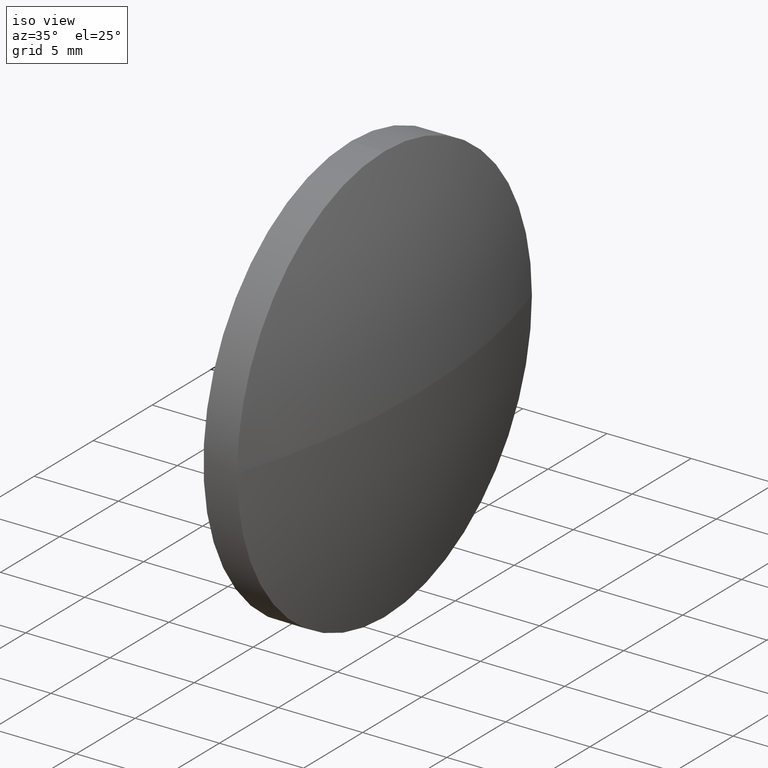
[diagram: clean part render]
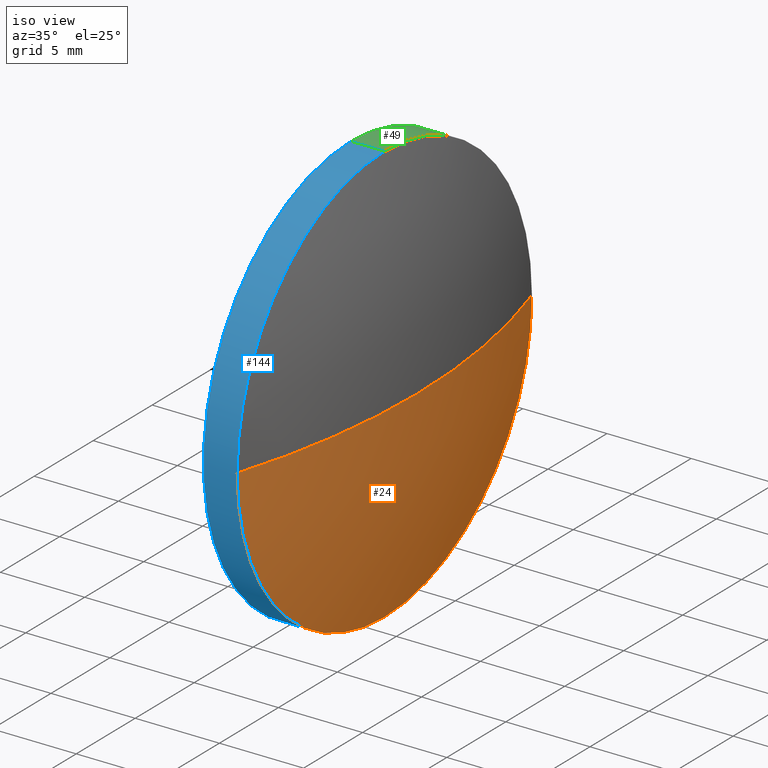
[diagram: same view with three faces highlighted in distinct colors, each labeled with its STEP entity id]
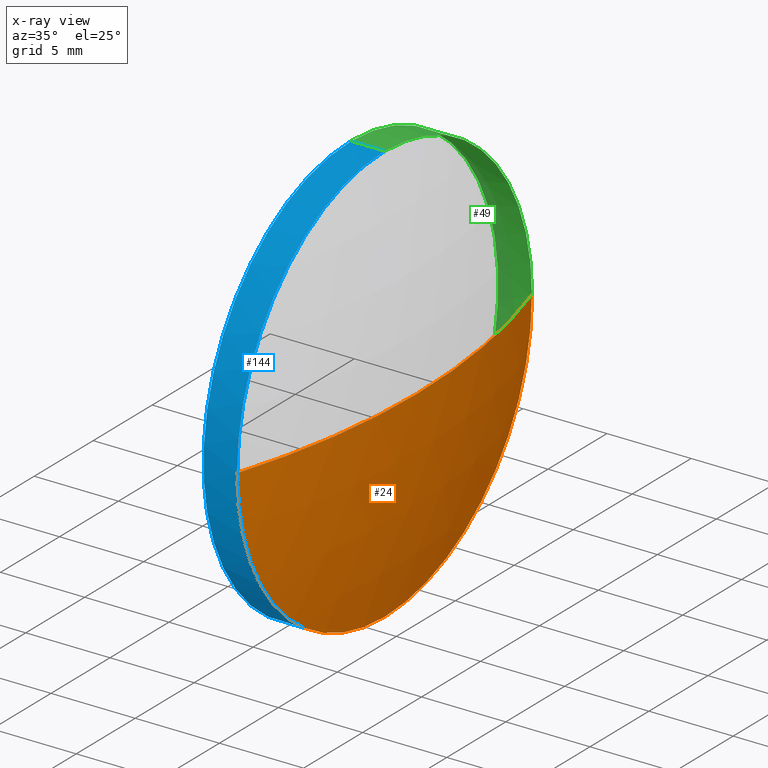
[diagram: x-ray of the same camera — body ghosted, the three highlighted faces saturated]
A machine part, iso view with three faces highlighted in distinct colors.
The next image is the same camera in x-ray (body ghosted, the three faces saturated) — at least one of them is partly hidden behind the body in this view.
Their STEP definitions:

[orange] entity #24 — the highlighted spherical surface has radius 41.2406 mm.
#2 = ORIENTED_EDGE ( 'NONE', *, *, #59, .F. ) ;
#4 = AXIS2_PLACEMENT_3D ( 'NONE', #119, #23, #65 ) ;
#10 = DIRECTION ( 'NONE',  ( 0.0000000000000000000, 0.0000000000000000000, 1.000000000000000000 ) ) ;
#11 = DIRECTION ( 'NONE',  ( -1.000000000000000000, -0.0000000000000000000, -0.0000000000000000000 ) ) ;
#20 = CARTESIAN_POINT ( 'NONE',  ( 693.9125718572777300, 125.5543078984230900, 0.0000000000000000000 ) ) ;
#23 = DIRECTION ( 'NONE',  ( 0.0000000000000000000, 1.224646799147353200E-016, -1.000000000000000000 ) ) ;
#24 = ADVANCED_FACE ( 'NONE', ( #46 ), #158, .T. ) ;
#26 = CARTESIAN_POINT ( 'NONE',  ( 695.8525718572777800, 125.5543078984230900, 0.0000000000000000000 ) ) ;
#28 = VERTEX_POINT ( 'NONE', #117 ) ;
#32 = ORIENTED_EDGE ( 'NONE', *, *, #85, .F. ) ;
#33 = AXIS2_PLACEMENT_3D ( 'NONE', #56, #11, #68 ) ;
#37 = CARTESIAN_POINT ( 'NONE',  ( 654.6119533005767200, 125.5543078984230900, 0.0000000000000000000 ) ) ;
#38 = CIRCLE ( 'NONE', #33, 12.49999999999998400 ) ;
#46 = FACE_OUTER_BOUND ( 'NONE', #150, .T. ) ;
#56 = CARTESIAN_POINT ( 'NONE',  ( 693.9125718572777300, 125.5543078984230900, 0.0000000000000000000 ) ) ;
#59 = EDGE_CURVE ( 'NONE', #178, #101, #124, .T. ) ;
#61 = EDGE_CURVE ( 'NONE', #178, #28, #115, .T. ) ;
#65 = DIRECTION ( 'NONE',  ( 0.0000000000000000000, 1.000000000000000000, 1.224646799147353200E-016 ) ) ;
#66 = AXIS2_PLACEMENT_3D ( 'NONE', #20, #71, #10 ) ;
#68 = DIRECTION ( 'NONE',  ( 0.0000000000000000000, 0.0000000000000000000, 1.000000000000000000 ) ) ;
#71 = DIRECTION ( 'NONE',  ( -1.000000000000000000, -0.0000000000000000000, -0.0000000000000000000 ) ) ;
#72 = EDGE_CURVE ( 'NONE', #101, #130, #100, .T. ) ;
#80 = ORIENTED_EDGE ( 'NONE', *, *, #72, .F. ) ;
#85 = EDGE_CURVE ( 'NONE', #130, #28, #38, .T. ) ;
#91 = AXIS2_PLACEMENT_3D ( 'NONE', #146, #161, #102 ) ;
#92 = ORIENTED_EDGE ( 'NONE', *, *, #61, .T. ) ;
#100 = CIRCLE ( 'NONE', #66, 12.49999999999998400 ) ;
#101 = VERTEX_POINT ( 'NONE', #170 ) ;
#102 = DIRECTION ( 'NONE',  ( 0.0000000000000000000, 1.000000000000000000, 0.0000000000000000000 ) ) ;
#104 = DIRECTION ( 'NONE',  ( -0.0000000000000000000, 0.0000000000000000000, 1.000000000000000000 ) ) ;
#115 = CIRCLE ( 'NONE', #4, 41.24061855670099400 ) ;
#117 = CARTESIAN_POINT ( 'NONE',  ( 693.9125718572777300, 113.0543078984230600, -1.530808498934194300E-015 ) ) ;
#119 = CARTESIAN_POINT ( 'NONE',  ( 654.6119533005767200, 125.5543078984230900, 0.0000000000000000000 ) ) ;
#122 = AXIS2_PLACEMENT_3D ( 'NONE', #37, #104, #174 ) ;
#124 = CIRCLE ( 'NONE', #122, 41.24061855670102300 ) ;
#130 = VERTEX_POINT ( 'NONE', #177 ) ;
#146 = CARTESIAN_POINT ( 'NONE',  ( 654.6119533005767200, 125.5543078984230900, 0.0000000000000000000 ) ) ;
#150 = EDGE_LOOP ( 'NONE', ( #2, #92, #32, #80 ) ) ;
#158 = SPHERICAL_SURFACE ( 'NONE', #91, 41.24061855670099400 ) ;
#161 = DIRECTION ( 'NONE',  ( -0.0000000000000000000, 0.0000000000000000000, -1.000000000000000000 ) ) ;
#170 = CARTESIAN_POINT ( 'NONE',  ( 693.9125718572777300, 138.0543078984231000, 0.0000000000000000000 ) ) ;
#174 = DIRECTION ( 'NONE',  ( 1.000000000000000000, 0.0000000000000000000, 0.0000000000000000000 ) ) ;
#177 = CARTESIAN_POINT ( 'NONE',  ( 693.9125718572777300, 125.5543078984230900, -12.49999999999998400 ) ) ;
#178 = VERTEX_POINT ( 'NONE', #26 ) ;

[blue] entity #144 — the highlighted cylindrical surface (partial cylindrical patch) has radius 12.5 mm, axis along (-1, -0, -0).
#5 = DIRECTION ( 'NONE',  ( -1.000000000000000000, -0.0000000000000000000, -0.0000000000000000000 ) ) ;
#7 = CIRCLE ( 'NONE', #129, 12.49999999999998400 ) ;
#8 = DIRECTION ( 'NONE',  ( 0.0000000000000000000, 0.0000000000000000000, 1.000000000000000000 ) ) ;
#11 = DIRECTION ( 'NONE',  ( -1.000000000000000000, -0.0000000000000000000, -0.0000000000000000000 ) ) ;
#13 = DIRECTION ( 'NONE',  ( -1.000000000000000000, -0.0000000000000000000, -0.0000000000000000000 ) ) ;
#14 = EDGE_CURVE ( 'NONE', #173, #159, #7, .T. ) ;
#16 = CIRCLE ( 'NONE', #99, 12.49999999999998400 ) ;
#17 = LINE ( 'NONE', #90, #165 ) ;
#27 = CARTESIAN_POINT ( 'NONE',  ( 693.9125718572777300, 125.5543078984230900, 12.49999999999998400 ) ) ;
#28 = VERTEX_POINT ( 'NONE', #117 ) ;
#33 = AXIS2_PLACEMENT_3D ( 'NONE', #56, #11, #68 ) ;
#38 = CIRCLE ( 'NONE', #33, 12.49999999999998400 ) ;
#41 = ORIENTED_EDGE ( 'NONE', *, *, #14, .F. ) ;
#45 = EDGE_CURVE ( 'NONE', #130, #173, #132, .T. ) ;
#48 = EDGE_LOOP ( 'NONE', ( #157, #58, #184, #142, #41 ) ) ;
#50 = EDGE_CURVE ( 'NONE', #112, #159, #17, .T. ) ;
#54 = AXIS2_PLACEMENT_3D ( 'NONE', #121, #13, #123 ) ;
#56 = CARTESIAN_POINT ( 'NONE',  ( 693.9125718572777300, 125.5543078984230900, 0.0000000000000000000 ) ) ;
#58 = ORIENTED_EDGE ( 'NONE', *, *, #85, .T. ) ;
#67 = CARTESIAN_POINT ( 'NONE',  ( 691.9125718572777300, 125.5543078984230900, 0.0000000000000000000 ) ) ;
#68 = DIRECTION ( 'NONE',  ( 0.0000000000000000000, 0.0000000000000000000, 1.000000000000000000 ) ) ;
#82 = CARTESIAN_POINT ( 'NONE',  ( 691.9125718572777300, 125.5543078984230900, 12.49999999999998400 ) ) ;
#84 = CARTESIAN_POINT ( 'NONE',  ( 691.9125718572777300, 125.5543078984230900, -12.49999999999998400 ) ) ;
#85 = EDGE_CURVE ( 'NONE', #130, #28, #38, .T. ) ;
#90 = CARTESIAN_POINT ( 'NONE',  ( 689.8834642788407300, 125.5543078984230900, 12.49999999999998400 ) ) ;
#99 = AXIS2_PLACEMENT_3D ( 'NONE', #137, #154, #8 ) ;
#103 = DIRECTION ( 'NONE',  ( 0.0000000000000000000, 0.0000000000000000000, 1.000000000000000000 ) ) ;
#112 = VERTEX_POINT ( 'NONE', #27 ) ;
#117 = CARTESIAN_POINT ( 'NONE',  ( 693.9125718572777300, 113.0543078984230600, -1.530808498934194300E-015 ) ) ;
#121 = CARTESIAN_POINT ( 'NONE',  ( 689.8834642788407300, 125.5543078984230900, 0.0000000000000000000 ) ) ;
#123 = DIRECTION ( 'NONE',  ( 0.0000000000000000000, 0.0000000000000000000, 1.000000000000000000 ) ) ;
#126 = CYLINDRICAL_SURFACE ( 'NONE', #54, 12.49999999999998400 ) ;
#129 = AXIS2_PLACEMENT_3D ( 'NONE', #67, #148, #103 ) ;
#130 = VERTEX_POINT ( 'NONE', #177 ) ;
#131 = CARTESIAN_POINT ( 'NONE',  ( 689.8834642788407300, 125.5543078984230900, -12.49999999999998400 ) ) ;
#132 = LINE ( 'NONE', #131, #143 ) ;
#137 = CARTESIAN_POINT ( 'NONE',  ( 693.9125718572777300, 125.5543078984230900, 0.0000000000000000000 ) ) ;
#142 = ORIENTED_EDGE ( 'NONE', *, *, #50, .T. ) ;
#143 = VECTOR ( 'NONE', #5, 1000.000000000000000 ) ;
#144 = ADVANCED_FACE ( 'NONE', ( #183 ), #126, .T. ) ;
#148 = DIRECTION ( 'NONE',  ( -1.000000000000000000, -0.0000000000000000000, -0.0000000000000000000 ) ) ;
#154 = DIRECTION ( 'NONE',  ( -1.000000000000000000, -0.0000000000000000000, -0.0000000000000000000 ) ) ;
#156 = EDGE_CURVE ( 'NONE', #28, #112, #16, .T. ) ;
#157 = ORIENTED_EDGE ( 'NONE', *, *, #45, .F. ) ;
#159 = VERTEX_POINT ( 'NONE', #82 ) ;
#165 = VECTOR ( 'NONE', #175, 1000.000000000000000 ) ;
#173 = VERTEX_POINT ( 'NONE', #84 ) ;
#175 = DIRECTION ( 'NONE',  ( -1.000000000000000000, -0.0000000000000000000, -0.0000000000000000000 ) ) ;
#177 = CARTESIAN_POINT ( 'NONE',  ( 693.9125718572777300, 125.5543078984230900, -12.49999999999998400 ) ) ;
#183 = FACE_OUTER_BOUND ( 'NONE', #48, .T. ) ;
#184 = ORIENTED_EDGE ( 'NONE', *, *, #156, .T. ) ;

[green] entity #49 — the highlighted cylindrical surface (partial cylindrical patch) has radius 12.5 mm, axis along (-1, -0, -0).
#3 = DIRECTION ( 'NONE',  ( 0.0000000000000000000, 0.0000000000000000000, 1.000000000000000000 ) ) ;
#5 = DIRECTION ( 'NONE',  ( -1.000000000000000000, -0.0000000000000000000, -0.0000000000000000000 ) ) ;
#10 = DIRECTION ( 'NONE',  ( 0.0000000000000000000, 0.0000000000000000000, 1.000000000000000000 ) ) ;
#15 = CIRCLE ( 'NONE', #98, 12.49999999999998400 ) ;
#17 = LINE ( 'NONE', #90, #165 ) ;
#20 = CARTESIAN_POINT ( 'NONE',  ( 693.9125718572777300, 125.5543078984230900, 0.0000000000000000000 ) ) ;
#22 = DIRECTION ( 'NONE',  ( -1.000000000000000000, -0.0000000000000000000, -0.0000000000000000000 ) ) ;
#27 = CARTESIAN_POINT ( 'NONE',  ( 693.9125718572777300, 125.5543078984230900, 12.49999999999998400 ) ) ;
#34 = EDGE_CURVE ( 'NONE', #159, #173, #15, .T. ) ;
#36 = ORIENTED_EDGE ( 'NONE', *, *, #45, .T. ) ;
#45 = EDGE_CURVE ( 'NONE', #130, #173, #132, .T. ) ;
#47 = AXIS2_PLACEMENT_3D ( 'NONE', #167, #152, #52 ) ;
#49 = ADVANCED_FACE ( 'NONE', ( #107 ), #60, .T. ) ;
#50 = EDGE_CURVE ( 'NONE', #112, #159, #17, .T. ) ;
#52 = DIRECTION ( 'NONE',  ( 0.0000000000000000000, 0.0000000000000000000, 1.000000000000000000 ) ) ;
#60 = CYLINDRICAL_SURFACE ( 'NONE', #151, 12.49999999999998400 ) ;
#63 = DIRECTION ( 'NONE',  ( -1.000000000000000000, -0.0000000000000000000, -0.0000000000000000000 ) ) ;
#66 = AXIS2_PLACEMENT_3D ( 'NONE', #20, #71, #10 ) ;
#71 = DIRECTION ( 'NONE',  ( -1.000000000000000000, -0.0000000000000000000, -0.0000000000000000000 ) ) ;
#72 = EDGE_CURVE ( 'NONE', #101, #130, #100, .T. ) ;
#74 = EDGE_LOOP ( 'NONE', ( #141, #36, #106, #171, #76 ) ) ;
#75 = EDGE_CURVE ( 'NONE', #112, #101, #111, .T. ) ;
#76 = ORIENTED_EDGE ( 'NONE', *, *, #75, .T. ) ;
#82 = CARTESIAN_POINT ( 'NONE',  ( 691.9125718572777300, 125.5543078984230900, 12.49999999999998400 ) ) ;
#84 = CARTESIAN_POINT ( 'NONE',  ( 691.9125718572777300, 125.5543078984230900, -12.49999999999998400 ) ) ;
#90 = CARTESIAN_POINT ( 'NONE',  ( 689.8834642788407300, 125.5543078984230900, 12.49999999999998400 ) ) ;
#98 = AXIS2_PLACEMENT_3D ( 'NONE', #147, #22, #3 ) ;
#100 = CIRCLE ( 'NONE', #66, 12.49999999999998400 ) ;
#101 = VERTEX_POINT ( 'NONE', #170 ) ;
#106 = ORIENTED_EDGE ( 'NONE', *, *, #34, .F. ) ;
#107 = FACE_OUTER_BOUND ( 'NONE', #74, .T. ) ;
#111 = CIRCLE ( 'NONE', #47, 12.49999999999998400 ) ;
#112 = VERTEX_POINT ( 'NONE', #27 ) ;
#118 = CARTESIAN_POINT ( 'NONE',  ( 689.8834642788407300, 125.5543078984230900, 0.0000000000000000000 ) ) ;
#130 = VERTEX_POINT ( 'NONE', #177 ) ;
#131 = CARTESIAN_POINT ( 'NONE',  ( 689.8834642788407300, 125.5543078984230900, -12.49999999999998400 ) ) ;
#132 = LINE ( 'NONE', #131, #143 ) ;
#141 = ORIENTED_EDGE ( 'NONE', *, *, #72, .T. ) ;
#143 = VECTOR ( 'NONE', #5, 1000.000000000000000 ) ;
#147 = CARTESIAN_POINT ( 'NONE',  ( 691.9125718572777300, 125.5543078984230900, 0.0000000000000000000 ) ) ;
#151 = AXIS2_PLACEMENT_3D ( 'NONE', #118, #63, #162 ) ;
#152 = DIRECTION ( 'NONE',  ( -1.000000000000000000, -0.0000000000000000000, -0.0000000000000000000 ) ) ;
#159 = VERTEX_POINT ( 'NONE', #82 ) ;
#162 = DIRECTION ( 'NONE',  ( 0.0000000000000000000, 0.0000000000000000000, 1.000000000000000000 ) ) ;
#165 = VECTOR ( 'NONE', #175, 1000.000000000000000 ) ;
#167 = CARTESIAN_POINT ( 'NONE',  ( 693.9125718572777300, 125.5543078984230900, 0.0000000000000000000 ) ) ;
#170 = CARTESIAN_POINT ( 'NONE',  ( 693.9125718572777300, 138.0543078984231000, 0.0000000000000000000 ) ) ;
#171 = ORIENTED_EDGE ( 'NONE', *, *, #50, .F. ) ;
#173 = VERTEX_POINT ( 'NONE', #84 ) ;
#175 = DIRECTION ( 'NONE',  ( -1.000000000000000000, -0.0000000000000000000, -0.0000000000000000000 ) ) ;
#177 = CARTESIAN_POINT ( 'NONE',  ( 693.9125718572777300, 125.5543078984230900, -12.49999999999998400 ) ) ;